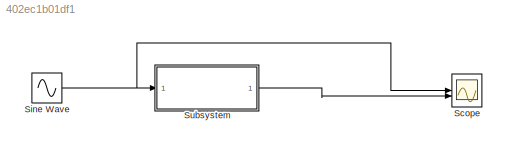
MODEL slx_402ec1b01df1
KIND model
CONFIG AbsTol = auto
CONFIG EnableMultiTasking = off
CONFIG FixedStep = auto
CONFIG MaxStep = 1e-3
CONFIG MinStep = auto
CONFIG RelTol = 1e-3
CONFIG SampleTimeConstraint = Unconstrained
CONFIG SolverName = VariableStepAuto
CONFIG StartTime = 0.0
CONFIG StopTime = 10
BLOCK [Scope] Scope
  Floating = off
  NumInputPorts = 2
  ScopeSpecificationString = Simulink.scopes.TimeScopeBlockCfg('CurrentConfiguration', extmgr.ConfigurationSet(extmgr.Configuration('Core','General UI',true),extmgr.Configuration('Core','Source UI',true),extmgr.Configuration('Sources','WiredSimulink',true),extmgr.Configuration('Visuals','Time Domain',true,'SerializedDisplays',{struct('MinYLimReal','-109.99999','MaxYLimReal','109.99999','YLabelReal','','MinYLimMag',' 0.00000',...<+2081ch>
BLOCK [Sin] Sine Wave
  Amplitude = 88
  SampleTime = 0
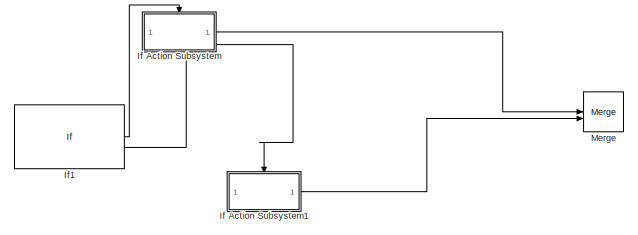
[diagram: Subsystem - part 1/2, middle right region]
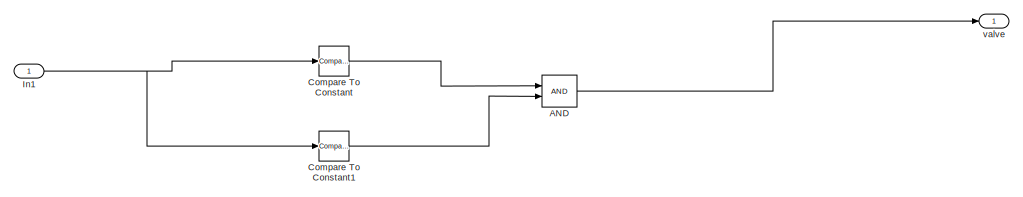
[diagram: Subsystem - part 2/2, bottom left region]
BLOCK [SubSystem] Subsystem
BLOCK [Outport] Subsystem/ valve
BLOCK [Logic] Subsystem/AND
  AllPortsSameDT = off
  IconShape = distinctive
  OutDataTypeStr = boolean
BLOCK [Reference] Subsystem/Compare To Constant  REF=simulink/Logic and Bit
Operations/Compare
To Constant
  SourceBlock = simulink/Logic and Bit\nOperations/Compare\nTo Constant
  SourceType = Compare To Constant
BLOCK [Reference] Subsystem/Compare To Constant1  REF=simulink/Logic and Bit
Operations/Compare
To Constant
  SourceBlock = simulink/Logic and Bit\nOperations/Compare\nTo Constant
  SourceType = Compare To Constant
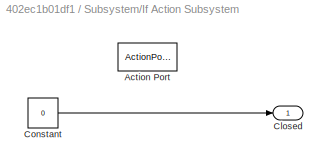
BLOCK [SubSystem] Subsystem/If Action Subsystem
  Commented = on
  TreatAsAtomicUnit = on
BLOCK [ActionPort] Subsystem/If Action Subsystem/Action Port
  ActionPortLabel = if(u1 > 60)
BLOCK [Outport] Subsystem/If Action Subsystem/Closed
BLOCK [Constant] Subsystem/If Action Subsystem/Constant
  Value = 0
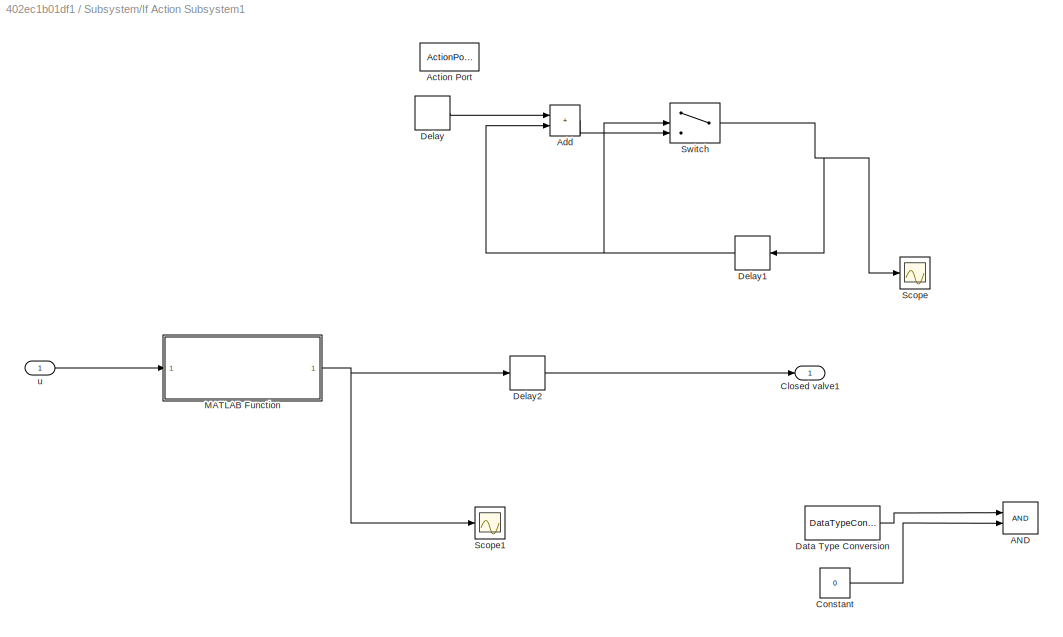
BLOCK [SubSystem] Subsystem/If Action Subsystem1
  Commented = on
  TreatAsAtomicUnit = on
BLOCK [Logic] Subsystem/If Action Subsystem1/AND
  AllPortsSameDT = off
  Commented = on
  IconShape = distinctive
  OutDataTypeStr = boolean
BLOCK [ActionPort] Subsystem/If Action Subsystem1/Action Port
  ActionPortLabel = elseif(u1<30)
BLOCK [Sum] Subsystem/If Action Subsystem1/Add
  Commented = on
  IconShape = rectangular
BLOCK [Outport] Subsystem/If Action Subsystem1/Closed valve1
BLOCK [Constant] Subsystem/If Action Subsystem1/Constant
  Commented = on
  OutDataTypeStr = boolean
  Value = 0
BLOCK [DataTypeConversion] Subsystem/If Action Subsystem1/Data Type Conversion
  Commented = on
  OutDataTypeStr = boolean
  RndMeth = Floor
  SaturateOnIntegerOverflow = off
BLOCK [Delay] Subsystem/If Action Subsystem1/Delay
  Commented = on
  DelayLength = 1
  InputPortMap = u0
BLOCK [Delay] Subsystem/If Action Subsystem1/Delay1
  Commented = on
  DelayLength = 1
  InputPortMap = u0
  NameLocation = top
BLOCK [Delay] Subsystem/If Action Subsystem1/Delay2
  DelayLength = 10
  InputPortMap = u0
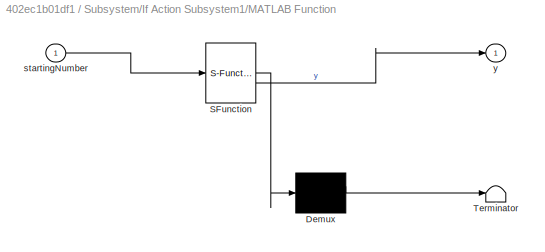
BLOCK [SubSystem] Subsystem/If Action Subsystem1/MATLAB Function
  ErrorFcn = Stateflow.Translate.translate
  LibrarySourceBlock = simulink/User-Defined\nFunctions/MATLAB Function
  PermitHierarchicalResolution = ExplicitOnly
  SFBlockType = MATLAB Function
  TreatAsAtomicUnit = on
BLOCK [Demux] Subsystem/If Action Subsystem1/MATLAB Function/ Demux 
  Outputs = 1
BLOCK [S-Function] Subsystem/If Action Subsystem1/MATLAB Function/ SFunction 
  EnableBusSupport = on
  FunctionName = sf_sfun
  PortCounts = [1 2]
  SFcnIsStateOwnerBlock = off
  SFunctionDeploymentMode = off
  Tag = Stateflow S-Function 2
BLOCK [Terminator] Subsystem/If Action Subsystem1/MATLAB Function/ Terminator 
BLOCK [Inport] Subsystem/If Action Subsystem1/MATLAB Function/startingNumber
BLOCK [Outport] Subsystem/If Action Subsystem1/MATLAB Function/y
BLOCK [Scope] Subsystem/If Action Subsystem1/Scope
  Commented = on
  Floating = off
  NumInputPorts = 1
  ScopeSpecificationString = Simulink.scopes.TimeScopeBlockCfg('CurrentConfiguration', extmgr.ConfigurationSet(extmgr.Configuration('Core','General UI',true),extmgr.Configuration('Core','Source UI',true),extmgr.Configuration('Sources','WiredSimulink',true),extmgr.Configuration('Visuals','Time Domain',true,'SerializedDisplays',{struct('MinYLimReal','-7.5','MaxYLimReal','67.5','YLabelReal','','MinYLimMag','0.00000','MaxYLimMag'...<+1360ch>
BLOCK [Scope] Subsystem/If Action Subsystem1/Scope1
  Floating = off
  NumInputPorts = 1
  ScopeSpecificationString = Simulink.scopes.TimeScopeBlockCfg('CurrentConfiguration', extmgr.ConfigurationSet(extmgr.Configuration('Core','General UI',true),extmgr.Configuration('Core','Source UI',true),extmgr.Configuration('Sources','WiredSimulink',true,'DataLoggingVariableName','ScopeData1'),extmgr.Configuration('Visuals','Time Domain',true,'SerializedDisplays',{struct('MinYLimReal','-7.5','MaxYLimReal','67.5','YLabelReal'...<+1454ch>
BLOCK [Switch] Subsystem/If Action Subsystem1/Switch
  Commented = on
  Criteria = u2 > Threshold
  InputSameDT = off
  SaturateOnIntegerOverflow = off
  Threshold = 59
BLOCK [Inport] Subsystem/If Action Subsystem1/u
BLOCK [If] Subsystem/If1
  Commented = on
  ElseIfExpressions = u1<30
  IfExpression = u1 > 60
  ShowElse = off
BLOCK [Inport] Subsystem/In1
BLOCK [Merge] Subsystem/Merge
  Commented = on
NET Sine Wave:1 -> Scope:1, Subsystem:1
LINE Subsystem/AND:1 -> Subsystem/ valve:1
LINE Subsystem/Compare To Constant1:1 -> Subsystem/AND:2
LINE Subsystem/Compare To Constant:1 -> Subsystem/AND:1
LINE Subsystem/If Action Subsystem/Constant:1 -> Subsystem/If Action Subsystem/Closed:1
LINE Subsystem/If Action Subsystem1/Add:1 -> Subsystem/If Action Subsystem1/Switch:3
LINE Subsystem/If Action Subsystem1/Constant:1 -> Subsystem/If Action Subsystem1/AND:2
LINE Subsystem/If Action Subsystem1/Data Type Conversion:1 -> Subsystem/If Action Subsystem1/AND:1
NET Subsystem/If Action Subsystem1/Delay1:1 -> Subsystem/If Action Subsystem1/Add:2, Subsystem/If Action Subsystem1/Switch:2
LINE Subsystem/If Action Subsystem1/Delay2:1 -> Subsystem/If Action Subsystem1/Closed valve1:1
LINE Subsystem/If Action Subsystem1/Delay:1 -> Subsystem/If Action Subsystem1/Add:1
NET Subsystem/If Action Subsystem1/MATLAB Function:1 -> Subsystem/If Action Subsystem1/Delay2:1, Subsystem/If Action Subsystem1/Scope1:1
NET Subsystem/If Action Subsystem1/Switch:1 -> Subsystem/If Action Subsystem1/Delay1:1, Subsystem/If Action Subsystem1/Scope:1
LINE Subsystem/If Action Subsystem1/u:1 -> Subsystem/If Action Subsystem1/MATLAB Function:1
LINE Subsystem/If Action Subsystem1:1 -> Subsystem/Merge:2
LINE Subsystem/If Action Subsystem:1 -> Subsystem/Merge:1
LINE Subsystem/If1:1 -> Subsystem/If Action Subsystem:ifaction
LINE Subsystem/If1:2 -> Subsystem/If Action Subsystem1:ifaction
NET Subsystem/In1:1 -> Subsystem/Compare To Constant1:1, Subsystem/Compare To Constant:1
LINE Subsystem:1 -> Scope:2
note: NET lines group one-source signal fan-out (src -> all destinations, sorted); 1:1 wires keep LINE
CHART Subsystem/If Action
Subsystem1/MATLAB Function states=1 transitions=1
  STATE_LABEL 'eML_blk_kernel()'
  STATE_LABEL 'SCRIPT:\nfunction y = countTo60(startingNumber)\npersistent counter;\n\nif isempty(counter)\n    counter = startingNumber;\nend\n\n\nif counter <= 60 && counter ~= 0\n    counter = counter + 1;\n  \n\nend\n\nif counter > 60\n    counter = 0;\nend\n\ny = counter;\nend\n'
CHART  states=0 transitions=0
